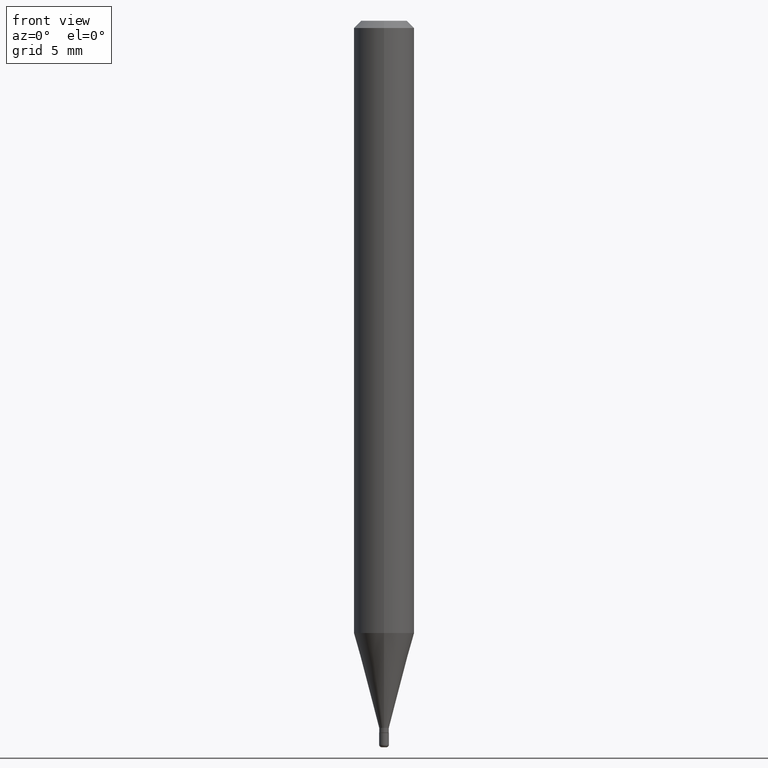
[diagram: clean part render]
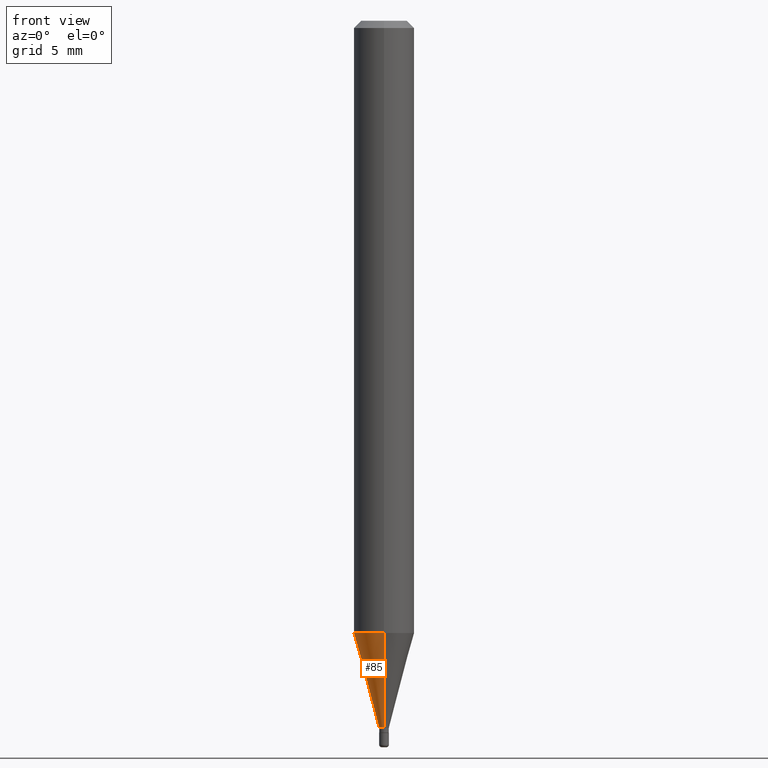
[diagram: same view with one face highlighted and labeled with its STEP entity id]
A machine part, front view. The second image highlights one B-rep face of the part: STEP entity #85.
In plain terms, the highlighted conical surface has half-angle 15 deg.
Its self-contained STEP definition (entity closure, byte-faithful):
#23 = EDGE_CURVE ( 'NONE', #97, #514, #30, .T. ) ;
#30 = CIRCLE ( 'NONE', #354, 0.06250000000000000000 ) ;
#33 = CARTESIAN_POINT ( 'NONE',  ( 3.570455561909225225E-29, -5.097460928477334009E-15, -1.460000000000000187 ) ) ;
#39 = CIRCLE ( 'NONE', #58, 0.01000000000000009041 ) ;
#53 = CARTESIAN_POINT ( 'NONE',  ( 3.091298793369065102E-29, -4.413379341716774381E-15, -1.264067332602634597 ) ) ;
#55 = FACE_OUTER_BOUND ( 'NONE', #128, .T. ) ;
#58 = AXIS2_PLACEMENT_3D ( 'NONE', #33, #306, #506 ) ;
#85 = ADVANCED_FACE ( 'NONE', ( #55 ), #268, .T. ) ;
#86 = VECTOR ( 'NONE', #488, 39.37007874015748854 ) ;
#97 = VERTEX_POINT ( 'NONE', #480 ) ;
#106 = CARTESIAN_POINT ( 'NONE',  ( 2.575717417130700727E-16, 0.009999999999994993796, -1.460000000000000187 ) ) ;
#117 = LINE ( 'NONE', #286, #86 ) ;
#118 = EDGE_CURVE ( 'NONE', #394, #97, #117, .T. ) ;
#128 = EDGE_LOOP ( 'NONE', ( #134, #194, #502, #256 ) ) ;
#134 = ORIENTED_EDGE ( 'NONE', *, *, #118, .F. ) ;
#184 = VECTOR ( 'NONE', #398, 39.37007874015748854 ) ;
#194 = ORIENTED_EDGE ( 'NONE', *, *, #409, .T. ) ;
#227 = VERTEX_POINT ( 'NONE', #298 ) ;
#237 = CARTESIAN_POINT ( 'NONE',  ( -4.364351673553606573E-16, -0.06250000000000441314, -1.264067332602634375 ) ) ;
#240 = DIRECTION ( 'NONE',  ( -6.982962677686265922E-15, -1.000000000000000000, 4.370956789862821150E-15 ) ) ;
#256 = ORIENTED_EDGE ( 'NONE', *, *, #23, .F. ) ;
#266 = LINE ( 'NONE', #513, #184 ) ;
#268 = CONICAL_SURFACE ( 'NONE', #418, 0.01000000000000009041, 0.2617993877991494633 ) ;
#286 = CARTESIAN_POINT ( 'NONE',  ( 7.105427357604634465E-17, 0.009999999999994993796, -1.460000000000000187 ) ) ;
#289 = DIRECTION ( 'NONE',  ( -2.445517508157003732E-29, 3.491411594847488118E-15, 1.000000000000000000 ) ) ;
#298 = CARTESIAN_POINT ( 'NONE',  ( -6.982962677682758991E-17, -0.01000000000000518703, -1.460000000000000187 ) ) ;
#306 = DIRECTION ( 'NONE',  ( -2.445517508157003732E-29, 3.491411594847488118E-15, 1.000000000000000000 ) ) ;
#317 = DIRECTION ( 'NONE',  ( -6.982962677686265133E-15, -1.000000000000000000, 0.000000000000000000 ) ) ;
#354 = AXIS2_PLACEMENT_3D ( 'NONE', #53, #289, #240 ) ;
#363 = DIRECTION ( 'NONE',  ( -2.445517508157003732E-29, 3.491411594847488118E-15, 1.000000000000000000 ) ) ;
#394 = VERTEX_POINT ( 'NONE', #106 ) ;
#398 = DIRECTION ( 'NONE',  ( -1.807323732225324223E-15, -0.2588190451025173533, 0.9659258262890690894 ) ) ;
#409 = EDGE_CURVE ( 'NONE', #394, #227, #39, .T. ) ;
#414 = CARTESIAN_POINT ( 'NONE',  ( 3.570455561909225225E-29, -5.097460928477334009E-15, -1.460000000000000187 ) ) ;
#418 = AXIS2_PLACEMENT_3D ( 'NONE', #414, #363, #317 ) ;
#472 = EDGE_CURVE ( 'NONE', #227, #514, #266, .T. ) ;
#480 = CARTESIAN_POINT ( 'NONE',  ( 4.440892098500933817E-16, 0.06249999999999557992, -1.264067332602634819 ) ) ;
#488 = DIRECTION ( 'NONE',  ( 1.839019923739594399E-15, 0.2588190451025241257, 0.9659258262890673130 ) ) ;
#502 = ORIENTED_EDGE ( 'NONE', *, *, #472, .T. ) ;
#506 = DIRECTION ( 'NONE',  ( -6.982962677686265133E-15, -1.000000000000000000, 0.000000000000000000 ) ) ;
#513 = CARTESIAN_POINT ( 'NONE',  ( -6.982962677682758991E-17, -0.01000000000000518703, -1.460000000000000187 ) ) ;
#514 = VERTEX_POINT ( 'NONE', #237 ) ;